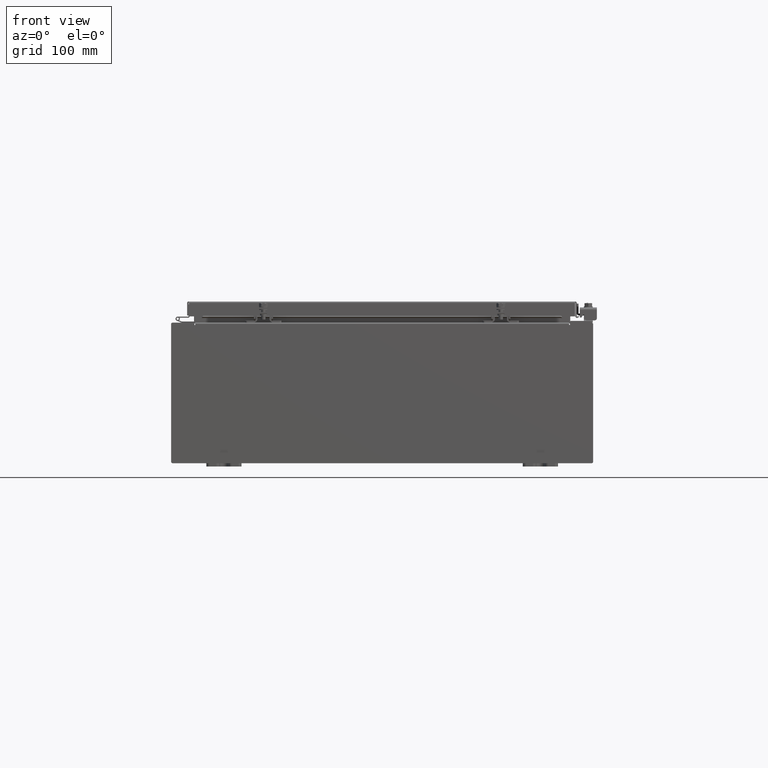
[diagram: clean part render]
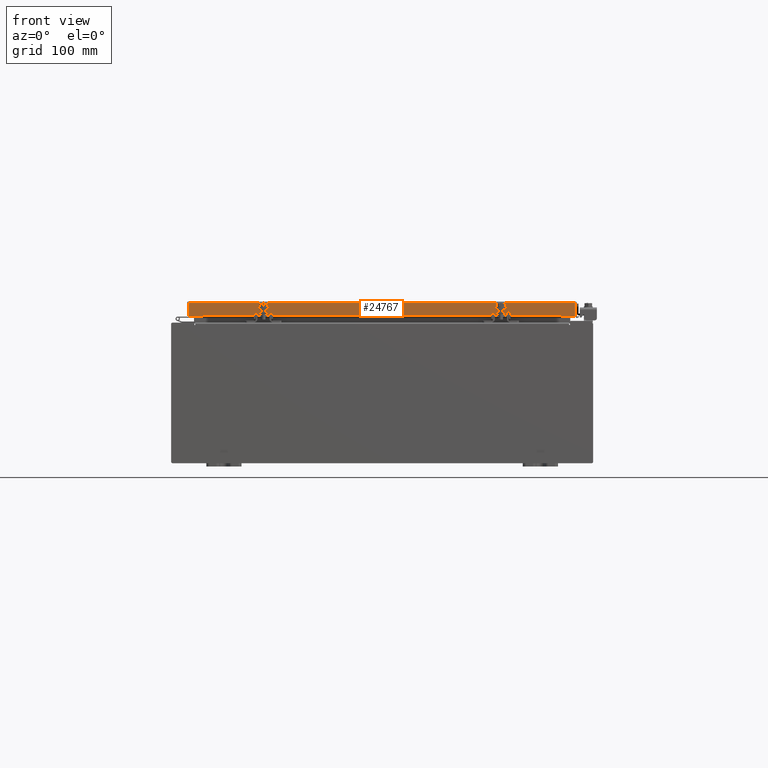
[diagram: same view with one face highlighted and labeled with its STEP entity id]
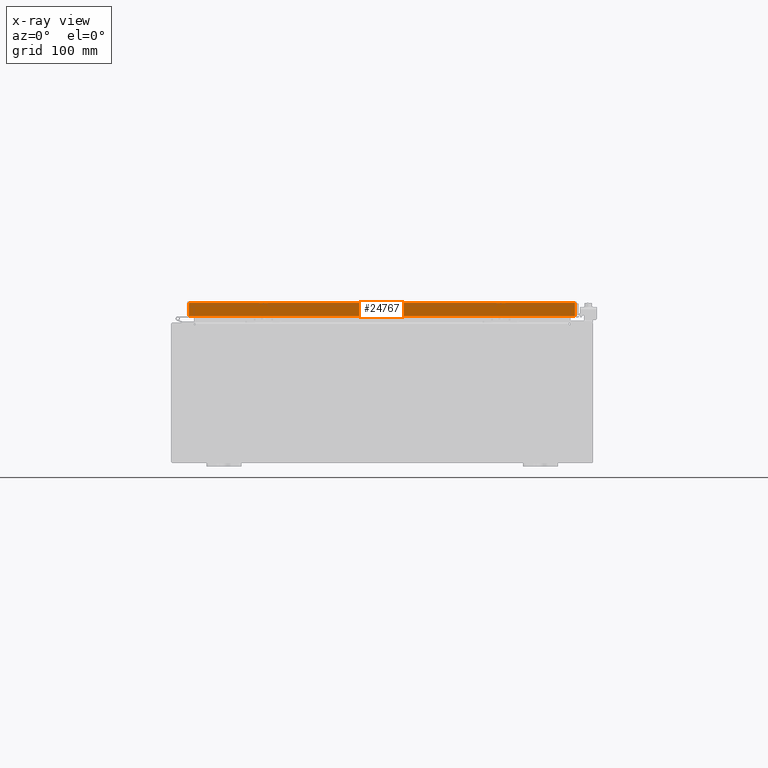
[diagram: x-ray of the same camera — body ghosted, the highlighted face saturated]
A machine part, front view. The second image highlights one B-rep face of the part: STEP entity #24767.
The next image is the same camera in x-ray: the body ghosted, the highlighted face saturated — about 0% of this face is hidden behind the body in this view.
In plain terms, the highlighted planar face has unit normal (0, 1, -0).
Its self-contained STEP definition (entity closure, byte-faithful):
#313 = EDGE_CURVE ( 'NONE', #13939, #28078, #33724, .T. ) ;
#373 = CARTESIAN_POINT ( 'NONE',  ( 10.98915786437626900, -14.09400000000000100, -0.07469999999999978000 ) ) ;
#706 = PLANE ( 'NONE',  #28595 ) ;
#2058 = FACE_OUTER_BOUND ( 'NONE', #31050, .T. ) ;
#2872 = CARTESIAN_POINT ( 'NONE',  ( -10.98915786437626900, -14.09399999999999900, 3.999012166344521600E-014 ) ) ;
#3482 = CARTESIAN_POINT ( 'NONE',  ( 10.98915786437624400, -14.09400000000000100, -0.08770000000000224800 ) ) ;
#3676 = CARTESIAN_POINT ( 'NONE',  ( -10.23915786437626700, -14.09399999999999900, -0.8500000000000012000 ) ) ;
#3691 = CARTESIAN_POINT ( 'NONE',  ( -1.390238874262646300E-015, -14.09399999999999900, 3.999012166344521600E-014 ) ) ;
#3920 = EDGE_CURVE ( 'NONE', #13607, #32802, #23387, .T. ) ;
#4147 = LINE ( 'NONE', #27780, #34097 ) ;
#4661 = CARTESIAN_POINT ( 'NONE',  ( 11.07799999999999900, -14.09400000000000100, -0.08770000000000224800 ) ) ;
#6654 = ORIENTED_EDGE ( 'NONE', *, *, #3920, .F. ) ;
#6711 = VERTEX_POINT ( 'NONE', #32657 ) ;
#7817 = DIRECTION ( 'NONE',  ( -1.000000000000000000, 0.0000000000000000000, 0.0000000000000000000 ) ) ;
#8011 = VECTOR ( 'NONE', #7817, 39.37007874015748100 ) ;
#8548 = CARTESIAN_POINT ( 'NONE',  ( 10.23915786437626700, -14.09399999999999900, -0.8500000000000012000 ) ) ;
#9820 = ORIENTED_EDGE ( 'NONE', *, *, #16051, .T. ) ;
#10508 = VECTOR ( 'NONE', #29427, 39.37007874015748100 ) ;
#10624 = VERTEX_POINT ( 'NONE', #33748 ) ;
#10983 = VECTOR ( 'NONE', #14302, 39.37007874015748100 ) ;
#11183 = ORIENTED_EDGE ( 'NONE', *, *, #313, .F. ) ;
#11362 = VECTOR ( 'NONE', #16451, 39.37007874015748100 ) ;
#11896 = LINE ( 'NONE', #28857, #10983 ) ;
#12594 = EDGE_CURVE ( 'NONE', #28078, #13607, #4147, .T. ) ;
#12951 = VECTOR ( 'NONE', #35814, 39.37007874015748100 ) ;
#13415 = ORIENTED_EDGE ( 'NONE', *, *, #29516, .F. ) ;
#13607 = VERTEX_POINT ( 'NONE', #27028 ) ;
#13912 = CARTESIAN_POINT ( 'NONE',  ( 10.98915786437626900, -14.09400000000000300, -0.8499999999999996400 ) ) ;
#13939 = VERTEX_POINT ( 'NONE', #3482 ) ;
#14302 = DIRECTION ( 'NONE',  ( -1.000000000000000000, 9.864047639156033700E-017, 1.233005954894504400E-016 ) ) ;
#16051 = EDGE_CURVE ( 'NONE', #6711, #10624, #36182, .T. ) ;
#16451 = DIRECTION ( 'NONE',  ( 1.000000000000000000, -9.864047639155999200E-017, -9.196021172131615100E-046 ) ) ;
#17416 = ORIENTED_EDGE ( 'NONE', *, *, #12594, .F. ) ;
#17799 = DIRECTION ( 'NONE',  ( 9.864047639155998000E-017, 1.000000000000000000, -2.818880942772360100E-015 ) ) ;
#19062 = LINE ( 'NONE', #4661, #11362 ) ;
#23387 = LINE ( 'NONE', #8548, #8011 ) ;
#24767 = ADVANCED_FACE ( 'NONE', ( #2058 ), #706, .F. ) ;
#24864 = DIRECTION ( 'NONE',  ( -1.000000000000000000, 9.864047639156033700E-017, 1.233005954894504400E-016 ) ) ;
#25845 = ORIENTED_EDGE ( 'NONE', *, *, #28258, .F. ) ;
#27028 = CARTESIAN_POINT ( 'NONE',  ( 10.23915786437626700, -14.09399999999999900, -0.8500000000000012000 ) ) ;
#27780 = CARTESIAN_POINT ( 'NONE',  ( 11.07799999999999900, -14.09400000000000300, -0.8499999999999996400 ) ) ;
#28078 = VERTEX_POINT ( 'NONE', #13912 ) ;
#28258 = EDGE_CURVE ( 'NONE', #32802, #10624, #11896, .T. ) ;
#28595 = AXIS2_PLACEMENT_3D ( 'NONE', #3691, #17799, #35290 ) ;
#28857 = CARTESIAN_POINT ( 'NONE',  ( 11.07799999999999900, -14.09400000000000300, -0.8499999999999996400 ) ) ;
#29427 = DIRECTION ( 'NONE',  ( 0.0000000000000000000, -2.818880942772360100E-015, -1.000000000000000000 ) ) ;
#29516 = EDGE_CURVE ( 'NONE', #6711, #13939, #19062, .T. ) ;
#31050 = EDGE_LOOP ( 'NONE', ( #13415, #9820, #25845, #6654, #17416, #11183 ) ) ;
#32657 = CARTESIAN_POINT ( 'NONE',  ( -10.98915786437626700, -14.09399999999999900, -0.08770000000000224800 ) ) ;
#32802 = VERTEX_POINT ( 'NONE', #3676 ) ;
#33724 = LINE ( 'NONE', #373, #10508 ) ;
#33748 = CARTESIAN_POINT ( 'NONE',  ( -10.98915786437626700, -14.09400000000000100, -0.8499999999999969800 ) ) ;
#34097 = VECTOR ( 'NONE', #24864, 39.37007874015748100 ) ;
#35290 = DIRECTION ( 'NONE',  ( 0.0000000000000000000, 2.818880942772360100E-015, 1.000000000000000000 ) ) ;
#35814 = DIRECTION ( 'NONE',  ( 0.0000000000000000000, -2.818880942772360100E-015, -1.000000000000000000 ) ) ;
#36182 = LINE ( 'NONE', #2872, #12951 ) ;